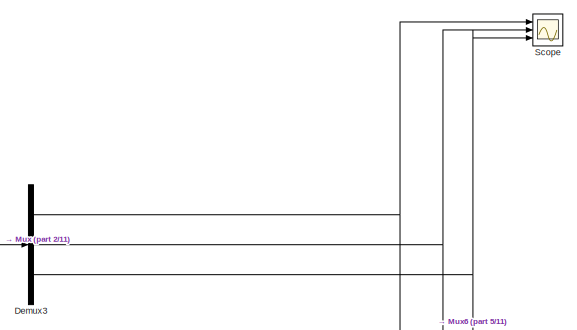
[diagram: root canvas - part 1/11, top right region]
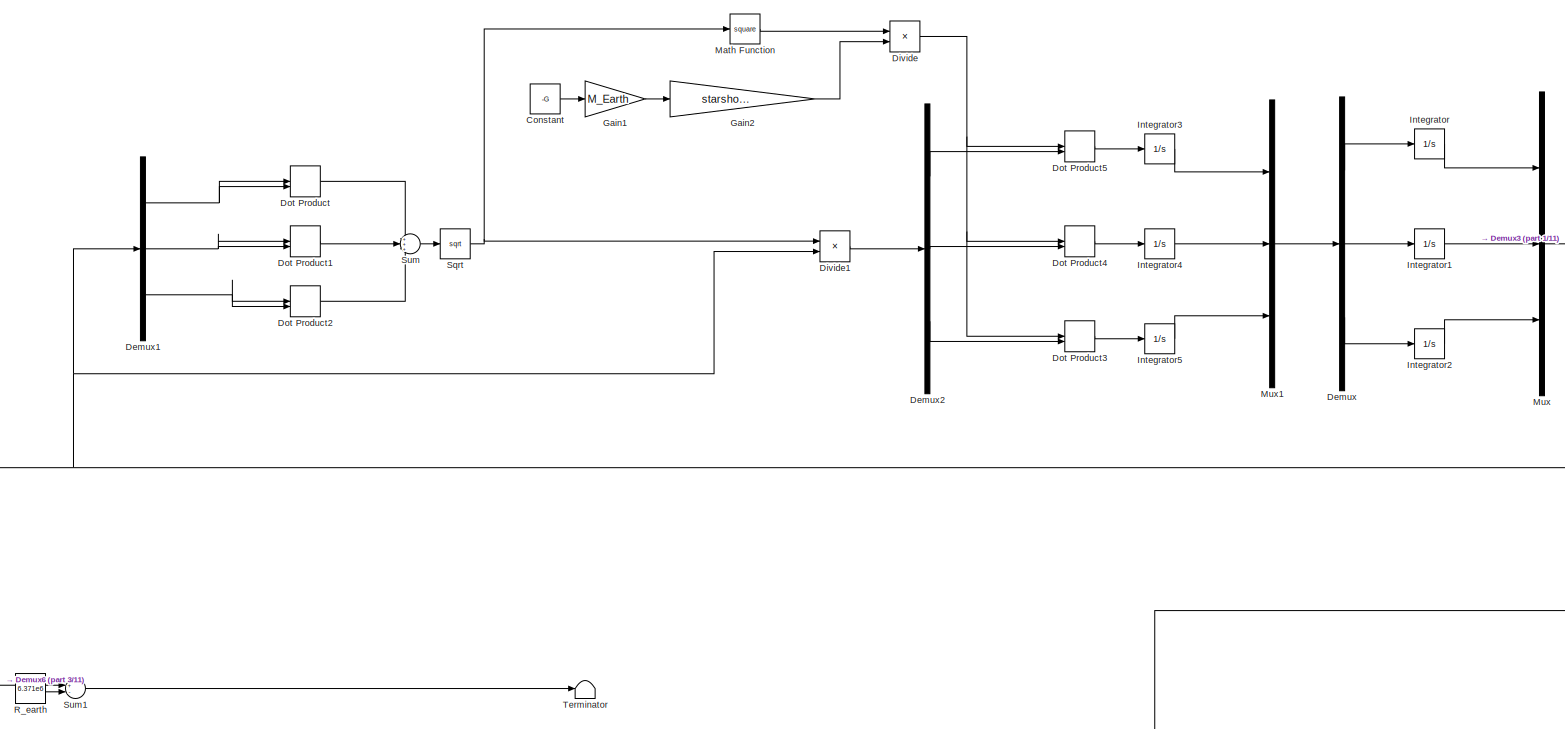
[diagram: root canvas - part 2/11, top right region]
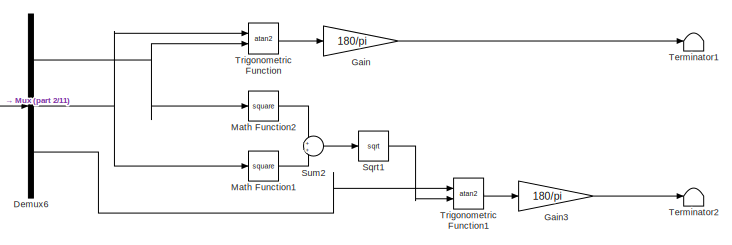
[diagram: root canvas - part 3/11, central region]
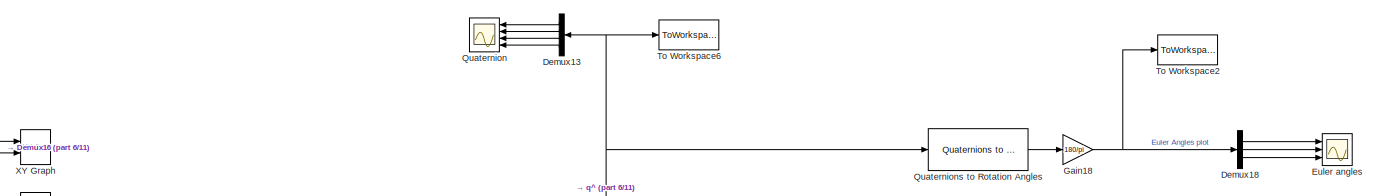
[diagram: root canvas - part 4/11, central region]
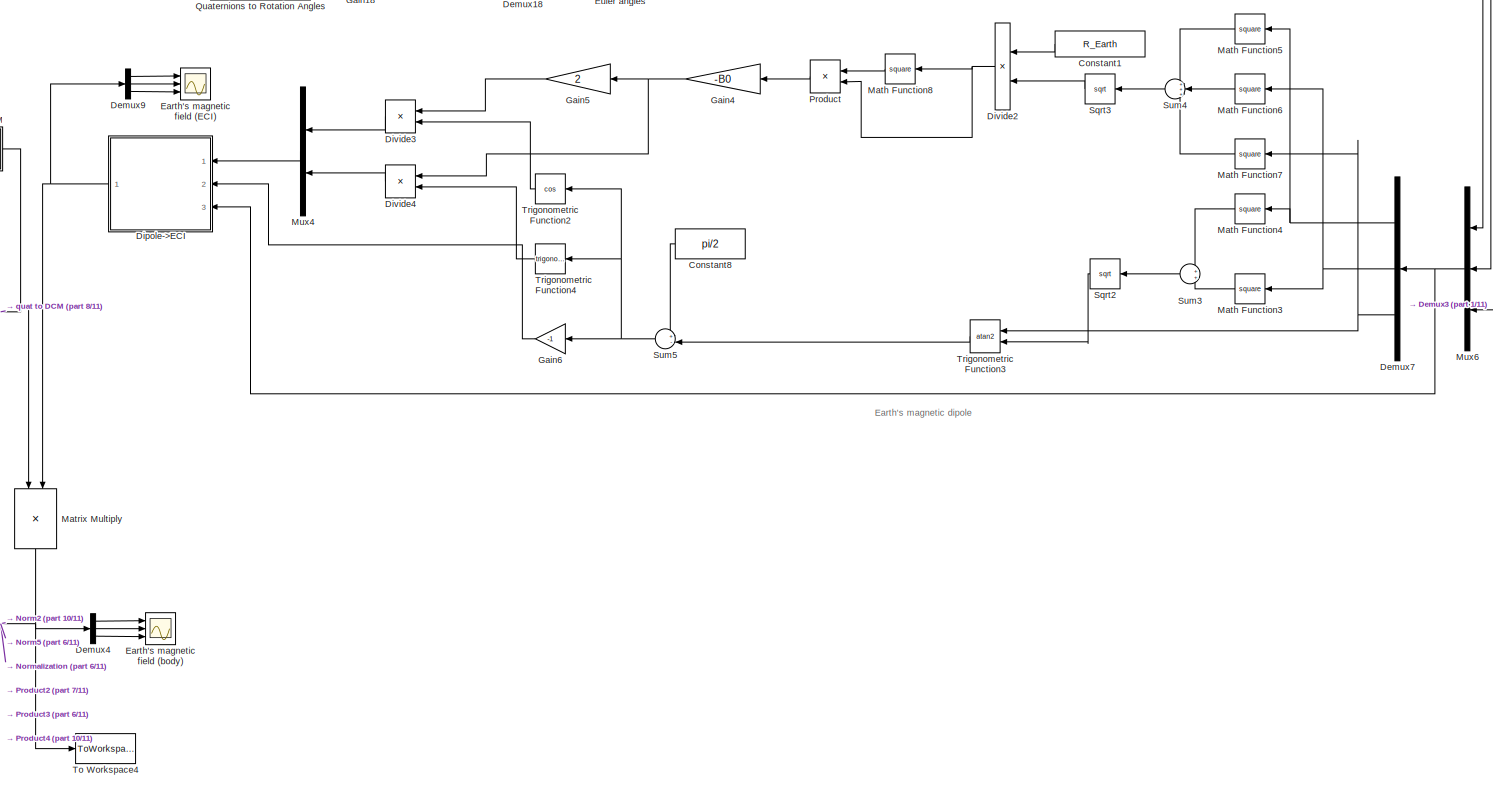
[diagram: root canvas - part 5/11, bottom center region]
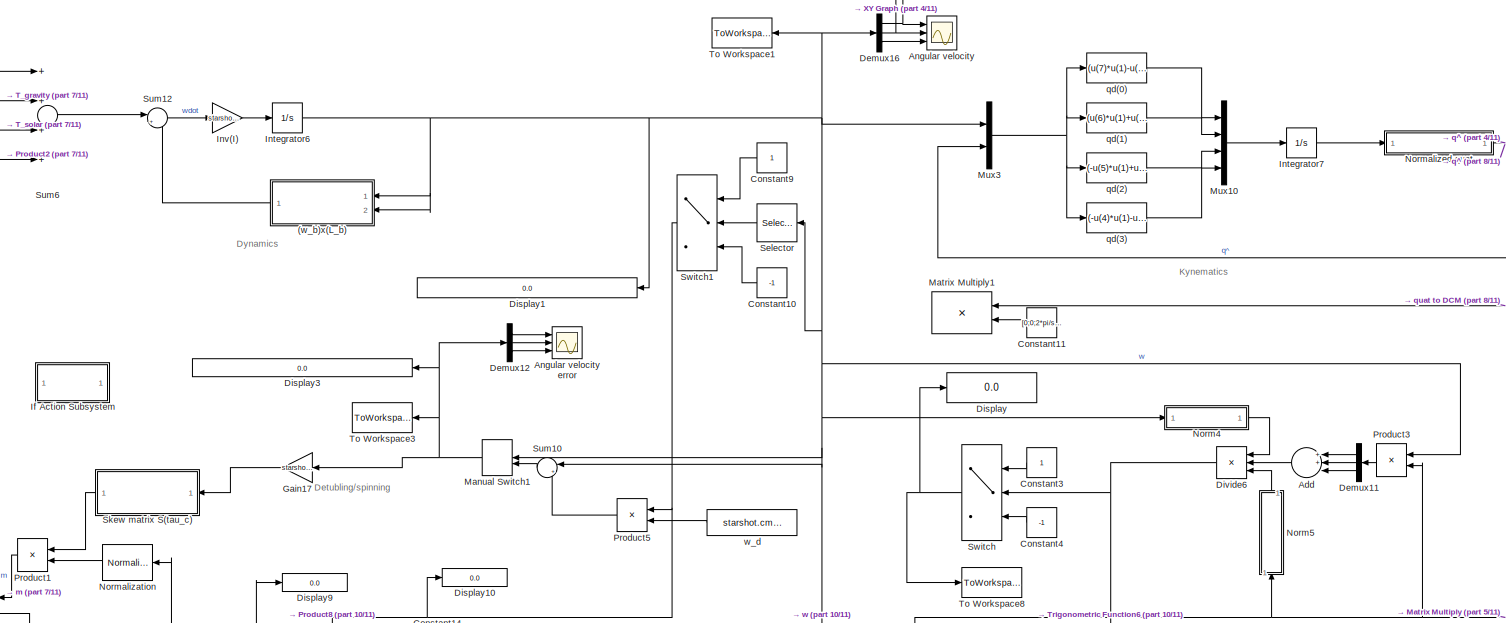
[diagram: root canvas - part 6/11, bottom left region]
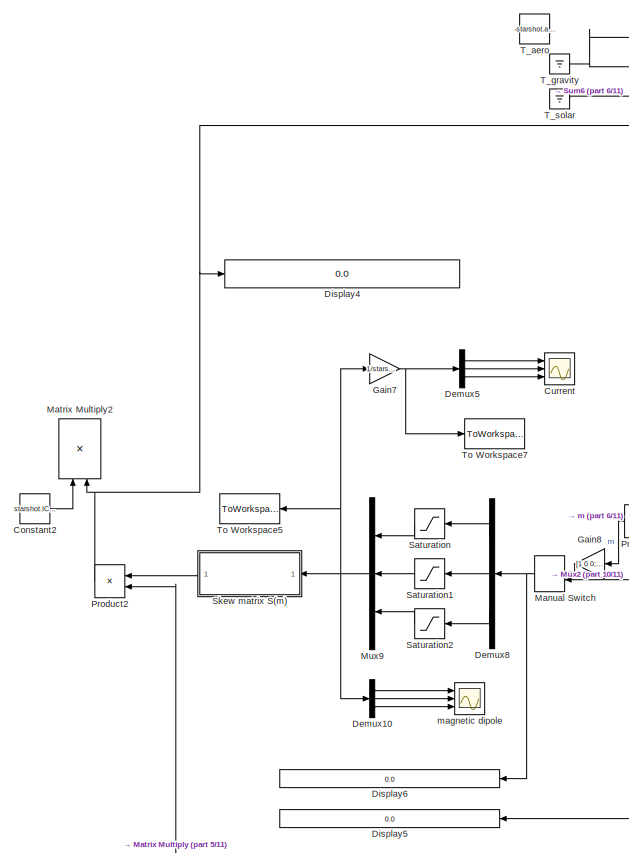
[diagram: root canvas - part 7/11, bottom left region]
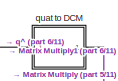
[diagram: root canvas - part 8/11, bottom center region]
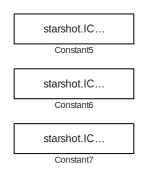
[diagram: root canvas - part 9/11, bottom right region]
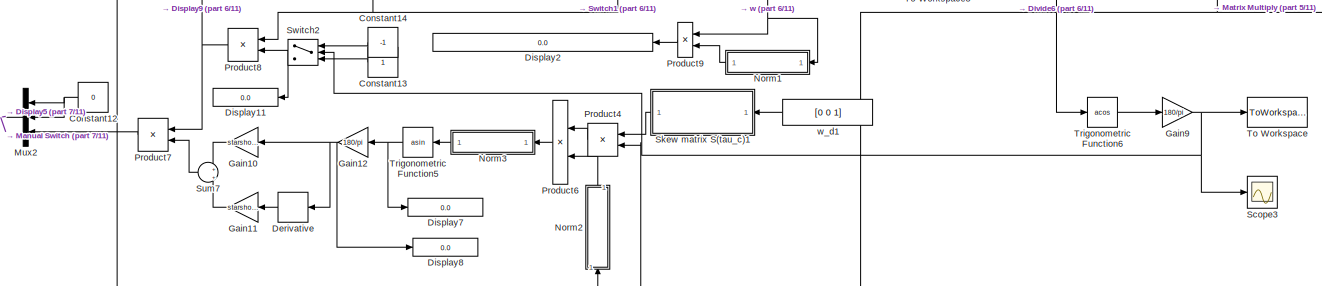
[diagram: root canvas - part 10/11, bottom left region]
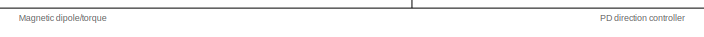
[diagram: root canvas - part 11/11, bottom left region]
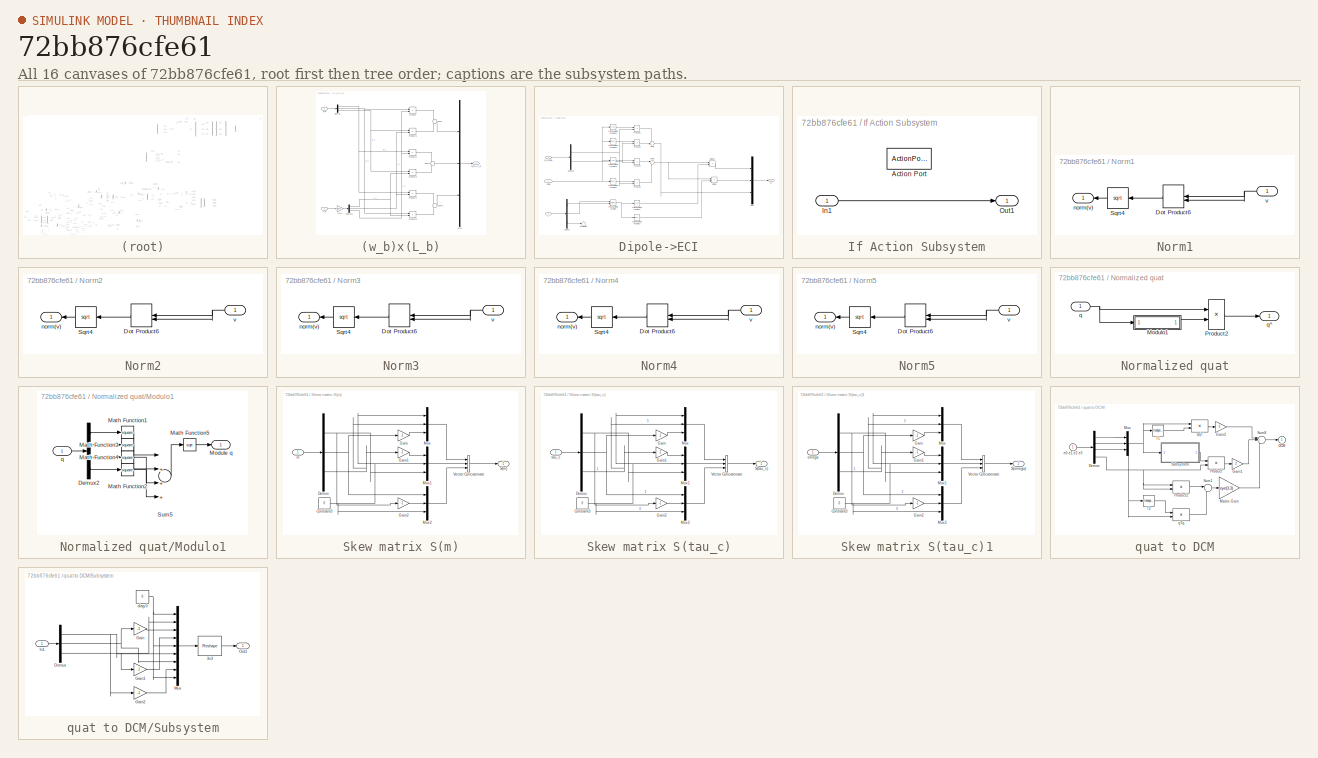
[diagram: thumbnail index - all 16 canvases of the model, root first then tree order]
MODEL slx_72bb876cfe61
KIND model
CONFIG AbsTol = auto
CONFIG EnableMultiTasking = off
CONFIG FixedStep = auto
CONFIG MaxStep = 4.0
CONFIG MinStep = .001
CONFIG RelTol = 1e-6
CONFIG SampleTimeConstraint = Unconstrained
CONFIG Solver = ode45
CONFIG SolverName = ode45
CONFIG StartTime = 0
CONFIG StopTime = 500000
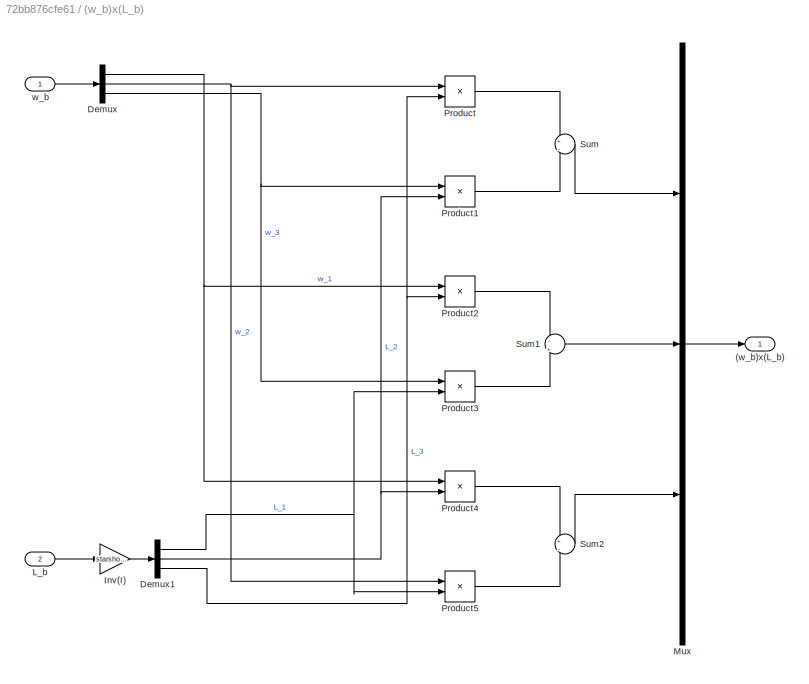
BLOCK [SubSystem] (w_b)x(L_b)
  Ports = [2, 1]
  RequestExecContextInheritance = off
  Variant = off
BLOCK [Outport] (w_b)x(L_b)/(w_b)x(L_b)
  IconDisplay = Port number
BLOCK [Demux] (w_b)x(L_b)/Demux
  DisplayOption = bar
  Outputs = 3
  Ports = [1, 3]
BLOCK [Demux] (w_b)x(L_b)/Demux1
  DisplayOption = bar
  Outputs = 3
  Ports = [1, 3]
BLOCK [Gain] (w_b)x(L_b)/Inv(I)
  Gain = starshot.IC.massproperties.I
  Multiplication = Matrix(K*u)
  OutDataTypeStr = Inherit: Inherit via internal rule
  ParamDataTypeStr = Inherit: Inherit via internal rule
  SaturateOnIntegerOverflow = off
BLOCK [Inport] (w_b)x(L_b)/L_b
  IconDisplay = Port number
  Port = 2
BLOCK [Mux] (w_b)x(L_b)/Mux
  DisplayOption = bar
  Inputs = 3
  Ports = [3, 1]
BLOCK [Product] (w_b)x(L_b)/Product
  InputSameDT = off
  OutDataTypeStr = Inherit: Inherit via internal rule
  Ports = [2, 1]
  RndMeth = Floor
  SaturateOnIntegerOverflow = off
BLOCK [Product] (w_b)x(L_b)/Product1
  InputSameDT = off
  OutDataTypeStr = Inherit: Inherit via internal rule
  Ports = [2, 1]
  RndMeth = Floor
  SaturateOnIntegerOverflow = off
BLOCK [Product] (w_b)x(L_b)/Product2
  InputSameDT = off
  OutDataTypeStr = Inherit: Inherit via internal rule
  Ports = [2, 1]
  RndMeth = Floor
  SaturateOnIntegerOverflow = off
BLOCK [Product] (w_b)x(L_b)/Product3
  InputSameDT = off
  OutDataTypeStr = Inherit: Inherit via internal rule
  Ports = [2, 1]
  RndMeth = Floor
  SaturateOnIntegerOverflow = off
BLOCK [Product] (w_b)x(L_b)/Product4
  InputSameDT = off
  OutDataTypeStr = Inherit: Inherit via internal rule
  Ports = [2, 1]
  RndMeth = Floor
  SaturateOnIntegerOverflow = off
BLOCK [Product] (w_b)x(L_b)/Product5
  InputSameDT = off
  OutDataTypeStr = Inherit: Inherit via internal rule
  Ports = [2, 1]
  RndMeth = Floor
  SaturateOnIntegerOverflow = off
BLOCK [Sum] (w_b)x(L_b)/Sum
  IconShape = round
  InputSameDT = off
  Inputs = +|-
  OutDataTypeStr = Inherit: Inherit via internal rule
  Ports = [2, 1]
  SaturateOnIntegerOverflow = off
BLOCK [Sum] (w_b)x(L_b)/Sum1
  IconShape = round
  InputSameDT = off
  Inputs = -|+
  OutDataTypeStr = Inherit: Inherit via internal rule
  Ports = [2, 1]
  SaturateOnIntegerOverflow = off
BLOCK [Sum] (w_b)x(L_b)/Sum2
  IconShape = round
  InputSameDT = off
  Inputs = +|-
  OutDataTypeStr = Inherit: Inherit via internal rule
  Ports = [2, 1]
  SaturateOnIntegerOverflow = off
BLOCK [Inport] (w_b)x(L_b)/w_b
  IconDisplay = Port number
BLOCK [Sum] Add
  InputSameDT = off
  Inputs = 3
  OutDataTypeStr = Inherit: Inherit via internal rule
  Ports = [3, 1]
  SaturateOnIntegerOverflow = off
BLOCK [Scope] Angular velocity
  NumInputPorts = 3
  Ports = [3]
  ScopeSpecificationString = Simulink.scopes.TimeScopeBlockCfg('CurrentConfiguration', extmgr.ConfigurationSet(extmgr.Configuration('Core','General UI',true),extmgr.Configuration('Core','Source UI',true),extmgr.Configuration('Sources','WiredSimulink',true,'DataLoggingVariableName','ScopeData2'),extmgr.Configuration('Visuals','Time Domain',true,'SerializedDisplays',{struct('MinYLimReal','-2.67192','MaxYLimReal','0.71112','YLab...<+2795ch>
BLOCK [Scope] Angular velocity error
  NumInputPorts = 3
  Ports = [3]
  ScopeSpecificationString = Simulink.scopes.TimeScopeBlockCfg('CurrentConfiguration', extmgr.ConfigurationSet(extmgr.Configuration('Core','General UI',true),extmgr.Configuration('Core','Source UI',true),extmgr.Configuration('Sources','WiredSimulink',true,'DataLoggingVariableName','ScopeData3'),extmgr.Configuration('Visuals','Time Domain',true,'SerializedDisplays',{struct('MinYLimReal','-7.75639','MaxYLimReal','5.47288','YLab...<+2724ch>
BLOCK [Constant] Constant
  Value = -G
BLOCK [Constant] Constant1
  Value = R_Earth
BLOCK [Constant] Constant10
  Value = -1
BLOCK [Constant] Constant11
  Commented = on
  Value = [0;0;2*pi/starshot.controller.T]
BLOCK [Constant] Constant12
  Value = 0
BLOCK [Constant] Constant13
BLOCK [Constant] Constant14
  Value = -1
BLOCK [Constant] Constant2
  Commented = on
  Value = starshot.IC.massproperties.PI
BLOCK [Constant] Constant3
BLOCK [Constant] Constant4
  Value = -1
BLOCK [Constant] Constant5
  Value = starshot.IC.x
BLOCK [Constant] Constant6
  Value = starshot.IC.y
BLOCK [Constant] Constant7
  Value = starshot.IC.z
BLOCK [Constant] Constant8
  Value = pi/2
BLOCK [Constant] Constant9
BLOCK [Scope] Current
  NumInputPorts = 3
  Ports = [3]
  ScopeSpecificationString = Simulink.scopes.TimeScopeBlockCfg('CurrentConfiguration', extmgr.ConfigurationSet(extmgr.Configuration('Core','General UI',true),extmgr.Configuration('Core','Source UI',true),extmgr.Configuration('Sources','WiredSimulink',true,'DataLoggingVariableName','ScopeData1'),extmgr.Configuration('Visuals','Time Domain',true,'SerializedDisplays',{struct('MinYLimReal','-0.03866','MaxYLimReal','0.03898','YLab...<+2741ch>
BLOCK [Demux] Demux
  DisplayOption = bar
  Outputs = 3
  Ports = [1, 3]
BLOCK [Demux] Demux1
  DisplayOption = bar
  Outputs = 3
  Ports = [1, 3]
BLOCK [Demux] Demux10
  DisplayOption = bar
  Outputs = 3
  Ports = [1, 3]
BLOCK [Demux] Demux11
  DisplayOption = bar
  Outputs = 3
  Ports = [1, 3]
BLOCK [Demux] Demux12
  DisplayOption = bar
  Outputs = 3
  Ports = [1, 3]
BLOCK [Demux] Demux13
  DisplayOption = bar
  Ports = [1, 4]
BLOCK [Demux] Demux16
  DisplayOption = bar
  Outputs = 3
  Ports = [1, 3]
BLOCK [Demux] Demux18
  DisplayOption = bar
  Outputs = 3
  Ports = [1, 3]
BLOCK [Demux] Demux2
  DisplayOption = bar
  Outputs = 3
  Ports = [1, 3]
BLOCK [Demux] Demux3
  DisplayOption = bar
  Outputs = 3
  Ports = [1, 3]
BLOCK [Demux] Demux4
  DisplayOption = bar
  Outputs = 3
  Ports = [1, 3]
BLOCK [Demux] Demux5
  DisplayOption = bar
  Outputs = 3
  Ports = [1, 3]
BLOCK [Demux] Demux6
  Commented = on
  DisplayOption = bar
  Outputs = 3
  Ports = [1, 3]
BLOCK [Demux] Demux7
  DisplayOption = bar
  Outputs = 3
  Ports = [1, 3]
BLOCK [Demux] Demux8
  DisplayOption = bar
  Outputs = 3
  Ports = [1, 3]
BLOCK [Demux] Demux9
  DisplayOption = bar
  Outputs = 3
  Ports = [1, 3]
BLOCK [Derivative] Derivative
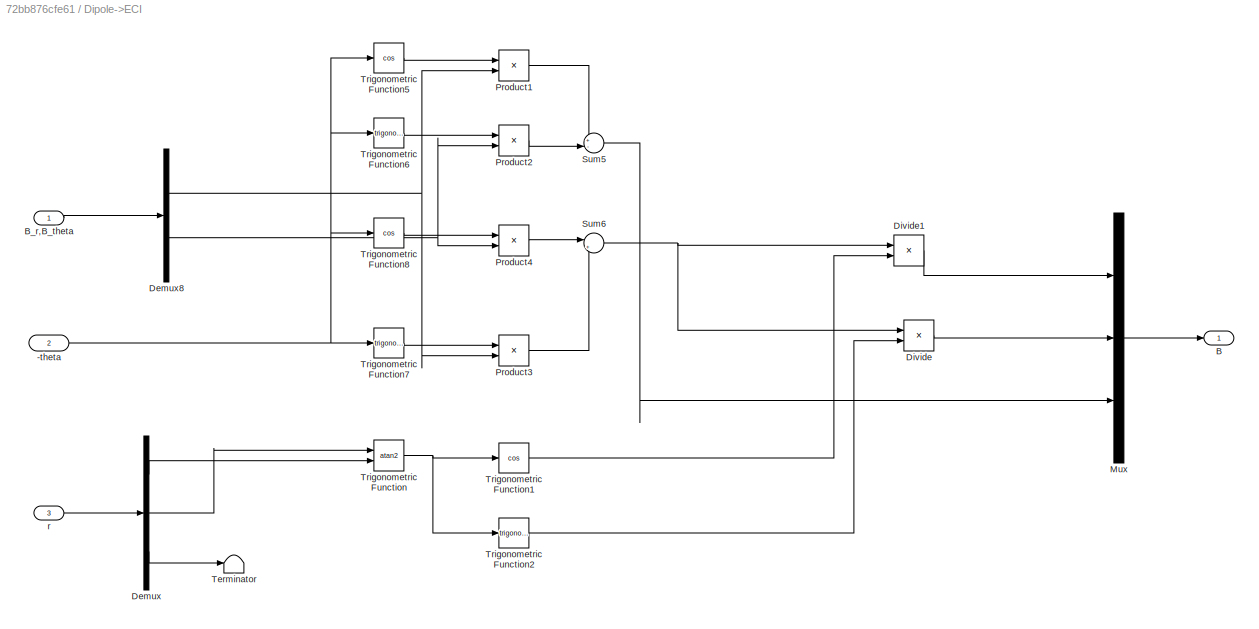
BLOCK [SubSystem] Dipole->ECI
  Ports = [3, 1]
  RequestExecContextInheritance = off
  Variant = off
BLOCK [Inport] Dipole->ECI/-theta
  IconDisplay = Port number
  Port = 2
BLOCK [Outport] Dipole->ECI/B
  IconDisplay = Port number
BLOCK [Inport] Dipole->ECI/B_r,B_theta
  IconDisplay = Port number
BLOCK [Demux] Dipole->ECI/Demux
  DisplayOption = bar
  Outputs = 3
  Ports = [1, 3]
BLOCK [Demux] Dipole->ECI/Demux8
  DisplayOption = bar
  Outputs = 2
  Ports = [1, 2]
BLOCK [Product] Dipole->ECI/Divide
  InputSameDT = off
  Inputs = **
  OutDataTypeStr = Inherit: Inherit via internal rule
  Ports = [2, 1]
  RndMeth = Floor
  SaturateOnIntegerOverflow = off
BLOCK [Product] Dipole->ECI/Divide1
  InputSameDT = off
  Inputs = **
  OutDataTypeStr = Inherit: Inherit via internal rule
  Ports = [2, 1]
  RndMeth = Floor
  SaturateOnIntegerOverflow = off
BLOCK [Mux] Dipole->ECI/Mux
  DisplayOption = bar
  Inputs = 3
  Ports = [3, 1]
BLOCK [Product] Dipole->ECI/Product1
  InputSameDT = off
  OutDataTypeStr = Inherit: Inherit via internal rule
  Ports = [2, 1]
  RndMeth = Floor
  SaturateOnIntegerOverflow = off
BLOCK [Product] Dipole->ECI/Product2
  InputSameDT = off
  OutDataTypeStr = Inherit: Inherit via internal rule
  Ports = [2, 1]
  RndMeth = Floor
  SaturateOnIntegerOverflow = off
BLOCK [Product] Dipole->ECI/Product3
  InputSameDT = off
  OutDataTypeStr = Inherit: Inherit via internal rule
  Ports = [2, 1]
  RndMeth = Floor
  SaturateOnIntegerOverflow = off
BLOCK [Product] Dipole->ECI/Product4
  InputSameDT = off
  OutDataTypeStr = Inherit: Inherit via internal rule
  Ports = [2, 1]
  RndMeth = Floor
  SaturateOnIntegerOverflow = off
BLOCK [Sum] Dipole->ECI/Sum5
  IconShape = round
  InputSameDT = off
  Inputs = +-|
  OutDataTypeStr = Inherit: Inherit via internal rule
  Ports = [2, 1]
  SaturateOnIntegerOverflow = off
BLOCK [Sum] Dipole->ECI/Sum6
  IconShape = round
  InputSameDT = off
  Inputs = |++
  OutDataTypeStr = Inherit: Inherit via internal rule
  Ports = [2, 1]
  SaturateOnIntegerOverflow = off
BLOCK [Terminator] Dipole->ECI/Terminator
BLOCK [Trigonometry] Dipole->ECI/Trigonometric Function
  Operator = atan2
  Ports = [2, 1]
BLOCK [Trigonometry] Dipole->ECI/Trigonometric Function1
  Operator = cos
  Ports = [1, 1]
BLOCK [Trigonometry] Dipole->ECI/Trigonometric Function2
  Ports = [1, 1]
BLOCK [Trigonometry] Dipole->ECI/Trigonometric Function5
  Operator = cos
  Ports = [1, 1]
BLOCK [Trigonometry] Dipole->ECI/Trigonometric Function6
  Ports = [1, 1]
BLOCK [Trigonometry] Dipole->ECI/Trigonometric Function7
  Ports = [1, 1]
BLOCK [Trigonometry] Dipole->ECI/Trigonometric Function8
  Operator = cos
  Ports = [1, 1]
BLOCK [Inport] Dipole->ECI/r
  IconDisplay = Port number
  Port = 3
BLOCK [Display] Display
  Decimation = 1
  Ports = [1]
BLOCK [Display] Display1
  Decimation = 1
  Ports = [1]
BLOCK [Display] Display10
  Decimation = 1
  Ports = [1]
BLOCK [Display] Display11
  Decimation = 1
  Ports = [1]
BLOCK [Display] Display2
  Decimation = 1
  Ports = [1]
BLOCK [Display] Display3
  Decimation = 1
  Ports = [1]
BLOCK [Display] Display4
  Decimation = 1
  Ports = [1]
BLOCK [Display] Display5
  Decimation = 1
  Ports = [1]
BLOCK [Display] Display6
  Decimation = 1
  Ports = [1]
BLOCK [Display] Display7
  Decimation = 1
  Ports = [1]
BLOCK [Display] Display8
  Decimation = 1
  Ports = [1]
BLOCK [Display] Display9
  Decimation = 1
  Ports = [1]
BLOCK [Product] Divide
  InputSameDT = off
  Inputs = /*
  OutDataTypeStr = Inherit: Inherit via internal rule
  Ports = [2, 1]
  RndMeth = Floor
  SaturateOnIntegerOverflow = off
BLOCK [Product] Divide1
  InputSameDT = off
  Inputs = /*
  OutDataTypeStr = Inherit: Inherit via internal rule
  Ports = [2, 1]
  RndMeth = Floor
  SaturateOnIntegerOverflow = off
BLOCK [Product] Divide2
  InputSameDT = off
  Inputs = */
  OutDataTypeStr = Inherit: Inherit via internal rule
  Ports = [2, 1]
  RndMeth = Floor
  SaturateOnIntegerOverflow = off
BLOCK [Product] Divide3
  InputSameDT = off
  Inputs = **
  OutDataTypeStr = Inherit: Inherit via internal rule
  Ports = [2, 1]
  RndMeth = Floor
  SaturateOnIntegerOverflow = off
BLOCK [Product] Divide4
  InputSameDT = off
  Inputs = **
  OutDataTypeStr = Inherit: Inherit via internal rule
  Ports = [2, 1]
  RndMeth = Floor
  SaturateOnIntegerOverflow = off
BLOCK [Product] Divide6
  InputSameDT = off
  Inputs = /*/
  OutDataTypeStr = Inherit: Inherit via internal rule
  Ports = [3, 1]
  RndMeth = Floor
  SaturateOnIntegerOverflow = off
BLOCK [DotProduct] Dot Product
  OutDataTypeStr = Inherit: Inherit via internal rule
BLOCK [DotProduct] Dot Product1
  OutDataTypeStr = Inherit: Inherit via internal rule
BLOCK [DotProduct] Dot Product2
  OutDataTypeStr = Inherit: Inherit via internal rule
BLOCK [DotProduct] Dot Product3
  OutDataTypeStr = Inherit: Inherit via internal rule
BLOCK [DotProduct] Dot Product4
  OutDataTypeStr = Inherit: Inherit via internal rule
BLOCK [DotProduct] Dot Product5
  OutDataTypeStr = Inherit: Inherit via internal rule
BLOCK [Scope] Earth's magnetic field (ECI)
  NumInputPorts = 3
  Ports = [3]
  ScopeSpecificationString = Simulink.scopes.TimeScopeBlockCfg('CurrentConfiguration', extmgr.ConfigurationSet(extmgr.Configuration('Core','General UI',true),extmgr.Configuration('Core','Source UI',true),extmgr.Configuration('Sources','WiredSimulink',true,'DataLoggingVariableName','ScopeData2'),extmgr.Configuration('Visuals','Time Domain',true,'SerializedDisplays',{struct('MinYLimReal','-0.0000004','MaxYLimReal','0.0000033','...<+2790ch>
BLOCK [Scope] Earth's magnetic field (body)
  NumInputPorts = 3
  Ports = [3]
  ScopeSpecificationString = Simulink.scopes.TimeScopeBlockCfg('CurrentConfiguration', extmgr.ConfigurationSet(extmgr.Configuration('Core','General UI',true),extmgr.Configuration('Core','Source UI',true),extmgr.Configuration('Sources','WiredSimulink',true,'DataLoggingVariableName','ScopeData2'),extmgr.Configuration('Visuals','Time Domain',true,'SerializedDisplays',{struct('MinYLimReal','-0.000023','MaxYLimReal','0.000019','YL...<+2787ch>
BLOCK [Scope] Euler angles
  NumInputPorts = 3
  Ports = [3]
  ScopeSpecificationString = Simulink.scopes.TimeScopeBlockCfg('CurrentConfiguration', extmgr.ConfigurationSet(extmgr.Configuration('Core','General UI',true),extmgr.Configuration('Core','Source UI',true),extmgr.Configuration('Sources','WiredSimulink',true,'DataLoggingVariableName','ScopeData5'),extmgr.Configuration('Visuals','Time Domain',true,'SerializedDisplays',{struct('MinYLimReal','-224.97937','MaxYLimReal','224.98449','...<+2815ch>
BLOCK [Gain] Gain
  Commented = on
  Gain = 180/pi
  OutDataTypeStr = Inherit: Inherit via internal rule
  ParamDataTypeStr = Inherit: Inherit via internal rule
  SaturateOnIntegerOverflow = off
BLOCK [Gain] Gain1
  Gain = M_Earth
  OutDataTypeStr = Inherit: Inherit via internal rule
  ParamDataTypeStr = Inherit: Inherit via internal rule
  SaturateOnIntegerOverflow = off
BLOCK [Gain] Gain10
  Gain = starshot.controller.Kp
  OutDataTypeStr = Inherit: Inherit via internal rule
  ParamDataTypeStr = Inherit: Inherit via internal rule
  SaturateOnIntegerOverflow = off
BLOCK [Gain] Gain11
  Gain = starshot.controller.Kd
  OutDataTypeStr = Inherit: Inherit via internal rule
  ParamDataTypeStr = Inherit: Inherit via internal rule
  SaturateOnIntegerOverflow = off
BLOCK [Gain] Gain12
  Gain = 180/pi
  OutDataTypeStr = Inherit: Inherit via internal rule
  ParamDataTypeStr = Inherit: Inherit via internal rule
  SaturateOnIntegerOverflow = off
BLOCK [Gain] Gain17
  Gain = starshot.controller.Kbdot/50
  Multiplication = Matrix(K*u)
  OutDataTypeStr = Inherit: Inherit via internal rule
  ParamDataTypeStr = Inherit: Inherit via internal rule
  SaturateOnIntegerOverflow = off
BLOCK [Gain] Gain18
  Gain = 180/pi
  OutDataTypeStr = Inherit: Inherit via internal rule
  ParamDataTypeStr = Inherit: Inherit via internal rule
  SaturateOnIntegerOverflow = off
BLOCK [Gain] Gain2
  Gain = starshot.IC.massproperties.m
  OutDataTypeStr = Inherit: Inherit via internal rule
  ParamDataTypeStr = Inherit: Inherit via internal rule
  SaturateOnIntegerOverflow = off
BLOCK [Gain] Gain3
  Commented = on
  Gain = 180/pi
  OutDataTypeStr = Inherit: Inherit via internal rule
  ParamDataTypeStr = Inherit: Inherit via internal rule
  SaturateOnIntegerOverflow = off
BLOCK [Gain] Gain4
  Gain = -B0
  OutDataTypeStr = Inherit: Inherit via internal rule
  ParamDataTypeStr = Inherit: Inherit via internal rule
  SaturateOnIntegerOverflow = off
BLOCK [Gain] Gain5
  Gain = 2
  OutDataTypeStr = Inherit: Inherit via internal rule
  ParamDataTypeStr = Inherit: Inherit via internal rule
  SaturateOnIntegerOverflow = off
BLOCK [Gain] Gain6
  Gain = -1
  OutDataTypeStr = Inherit: Inherit via internal rule
  ParamDataTypeStr = Inherit: Inherit via internal rule
  SaturateOnIntegerOverflow = off
BLOCK [Gain] Gain7
  Gain = 1/starshot.magnetorq.k/starshot.magnetorq.n/starshot.magnetorq.A
  OutDataTypeStr = Inherit: Inherit via internal rule
  ParamDataTypeStr = Inherit: Inherit via internal rule
  SaturateOnIntegerOverflow = off
BLOCK [Gain] Gain8
  Gain = [1 0 0;0 1 0;0 0 1]
  Multiplication = Matrix(K*u) (u vector)
  OutDataTypeStr = Inherit: Inherit via internal rule
  ParamDataTypeStr = Inherit: Inherit via internal rule
  SaturateOnIntegerOverflow = off
BLOCK [Gain] Gain9
  Gain = 180/pi
  OutDataTypeStr = Inherit: Inherit via internal rule
  ParamDataTypeStr = Inherit: Inherit via internal rule
  SaturateOnIntegerOverflow = off
BLOCK [SubSystem] If Action Subsystem
  Commented = on
  Ports = [1, 1, 0, 0, 0, 0, 0, 1]
  RequestExecContextInheritance = off
  TreatAsAtomicUnit = on
  Variant = off
BLOCK [ActionPort] If Action Subsystem/Action Port
BLOCK [Inport] If Action Subsystem/In1
  IconDisplay = Port number
BLOCK [Outport] If Action Subsystem/Out1
  IconDisplay = Port number
BLOCK [Integrator] Integrator
  InitialCondition = starshot.IC.x
  Ports = [1, 1]
BLOCK [Integrator] Integrator1
  InitialCondition = starshot.IC.y
  Ports = [1, 1]
BLOCK [Integrator] Integrator2
  InitialCondition = starshot.IC.z
  Ports = [1, 1]
BLOCK [Integrator] Integrator3
  InitialCondition = starshot.IC.xdot
  Ports = [1, 1]
BLOCK [Integrator] Integrator4
  InitialCondition = starshot.IC.ydot
  Ports = [1, 1]
BLOCK [Integrator] Integrator5
  InitialCondition = starshot.IC.zdot
  Ports = [1, 1]
BLOCK [Integrator] Integrator6
  InitialCondition = starshot.IC.w
  Ports = [1, 1]
BLOCK [Integrator] Integrator7
  InitialCondition = q0
  Ports = [1, 1]
BLOCK [Gain] Inv(I)
  Gain = starshot.IC.massproperties.Iinv
  Multiplication = Matrix(K*u)
  OutDataTypeStr = Inherit: Inherit via internal rule
  ParamDataTypeStr = Inherit: Inherit via internal rule
  SaturateOnIntegerOverflow = off
BLOCK [ManualSwitch] Manual Switch
BLOCK [ManualSwitch] Manual Switch1
  CurrentSetting = 0
BLOCK [Math] Math Function
  Operator = square
  Ports = [1, 1]
BLOCK [Math] Math Function1
  Commented = on
  Operator = square
  Ports = [1, 1]
BLOCK [Math] Math Function2
  Commented = on
  Operator = square
  Ports = [1, 1]
BLOCK [Math] Math Function3
  Operator = square
  Ports = [1, 1]
BLOCK [Math] Math Function4
  Operator = square
  Ports = [1, 1]
BLOCK [Math] Math Function5
  Operator = square
  Ports = [1, 1]
BLOCK [Math] Math Function6
  Operator = square
  Ports = [1, 1]
BLOCK [Math] Math Function7
  Operator = square
  Ports = [1, 1]
BLOCK [Math] Math Function8
  Operator = square
  Ports = [1, 1]
BLOCK [Product] Matrix Multiply
  InputSameDT = off
  Multiplication = Matrix(*)
  OutDataTypeStr = Inherit: Inherit via internal rule
  Ports = [2, 1]
  RndMeth = Floor
  SaturateOnIntegerOverflow = off
BLOCK [Product] Matrix Multiply1
  Commented = on
  InputSameDT = off
  Multiplication = Matrix(*)
  OutDataTypeStr = Inherit: Inherit via internal rule
  Ports = [2, 1]
  RndMeth = Floor
  SaturateOnIntegerOverflow = off
BLOCK [Product] Matrix Multiply2
  Commented = on
  InputSameDT = off
  Multiplication = Matrix(*)
  OutDataTypeStr = Inherit: Inherit via internal rule
  Ports = [2, 1]
  RndMeth = Floor
  SaturateOnIntegerOverflow = off
BLOCK [Mux] Mux
  DisplayOption = bar
  Inputs = 3
  Ports = [3, 1]
BLOCK [Mux] Mux1
  DisplayOption = bar
  Inputs = 3
  Ports = [3, 1]
BLOCK [Mux] Mux10
  DisplayOption = bar
  Ports = [4, 1]
BLOCK [Mux] Mux2
  DisplayOption = bar
  Inputs = 3
  Ports = [3, 1]
BLOCK [Mux] Mux3
  DisplayOption = bar
  Inputs = 2
  Ports = [2, 1]
BLOCK [Mux] Mux4
  DisplayOption = bar
  Inputs = 2
  Ports = [2, 1]
BLOCK [Mux] Mux6
  DisplayOption = bar
  Inputs = 3
  Ports = [3, 1]
BLOCK [Mux] Mux9
  DisplayOption = bar
  Inputs = 3
  Ports = [3, 1]
BLOCK [SubSystem] Norm1
  Ports = [1, 1]
  RequestExecContextInheritance = off
  Variant = off
BLOCK [DotProduct] Norm1/Dot Product6
  OutDataTypeStr = Inherit: Inherit via internal rule
BLOCK [Sqrt] Norm1/Sqrt4
BLOCK [Outport] Norm1/norm(v)
  IconDisplay = Port number
BLOCK [Inport] Norm1/v
  IconDisplay = Port number
BLOCK [SubSystem] Norm2
  Ports = [1, 1]
  RequestExecContextInheritance = off
  Variant = off
BLOCK [DotProduct] Norm2/Dot Product6
  OutDataTypeStr = Inherit: Inherit via internal rule
BLOCK [Sqrt] Norm2/Sqrt4
BLOCK [Outport] Norm2/norm(v)
  IconDisplay = Port number
BLOCK [Inport] Norm2/v
  IconDisplay = Port number
BLOCK [SubSystem] Norm3
  Ports = [1, 1]
  RequestExecContextInheritance = off
  Variant = off
BLOCK [DotProduct] Norm3/Dot Product6
  OutDataTypeStr = Inherit: Inherit via internal rule
BLOCK [Sqrt] Norm3/Sqrt4
BLOCK [Outport] Norm3/norm(v)
  IconDisplay = Port number
BLOCK [Inport] Norm3/v
  IconDisplay = Port number
BLOCK [SubSystem] Norm4
  Ports = [1, 1]
  RequestExecContextInheritance = off
  Variant = off
BLOCK [DotProduct] Norm4/Dot Product6
  OutDataTypeStr = Inherit: Inherit via internal rule
BLOCK [Sqrt] Norm4/Sqrt4
BLOCK [Outport] Norm4/norm(v)
  IconDisplay = Port number
BLOCK [Inport] Norm4/v
  IconDisplay = Port number
BLOCK [SubSystem] Norm5
  Ports = [1, 1]
  RequestExecContextInheritance = off
  Variant = off
BLOCK [DotProduct] Norm5/Dot Product6
  OutDataTypeStr = Inherit: Inherit via internal rule
BLOCK [Sqrt] Norm5/Sqrt4
BLOCK [Outport] Norm5/norm(v)
  IconDisplay = Port number
BLOCK [Inport] Norm5/v
  IconDisplay = Port number
BLOCK [Reference] Normalization  REF=dspmathops/Normalization
  Ports = [1, 1]
  SourceBlock = dspmathops/Normalization
  SourceProductBaseCode = DS
  SourceProductName = DSP System Toolbox
  SourceType = Normalization
BLOCK [SubSystem] Normalized quat
  Ports = [1, 1]
  RequestExecContextInheritance = off
  Variant = off
BLOCK [SubSystem] Normalized quat/Modulo1
  Ports = [1, 1]
  RequestExecContextInheritance = off
  Variant = off
BLOCK [Demux] Normalized quat/Modulo1/Demux2
  Ports = [1, 4]
BLOCK [Math] Normalized quat/Modulo1/Math Function1
  Operator = square
  Ports = [1, 1]
BLOCK [Math] Normalized quat/Modulo1/Math Function2
  Operator = square
  Ports = [1, 1]
BLOCK [Math] Normalized quat/Modulo1/Math Function3
  Operator = square
  Ports = [1, 1]
BLOCK [Math] Normalized quat/Modulo1/Math Function4
  Operator = square
  Ports = [1, 1]
BLOCK [Math] Normalized quat/Modulo1/Math Function5
  Operator = sqrt
  Ports = [1, 1]
BLOCK [Outport] Normalized quat/Modulo1/Module q
  IconDisplay = Port number
BLOCK [Sum] Normalized quat/Modulo1/Sum5
  InputSameDT = off
  Inputs = |++++
  OutDataTypeStr = Inherit: Inherit via internal rule
  Ports = [4, 1]
BLOCK [Inport] Normalized quat/Modulo1/q
  IconDisplay = Port number
BLOCK [Product] Normalized quat/Product2
  InputSameDT = off
  Inputs = */
  Ports = [2, 1]
  RndMeth = Floor
BLOCK [Inport] Normalized quat/q
  IconDisplay = Port number
BLOCK [Outport] Normalized quat/q^
  IconDisplay = Port number
BLOCK [Product] Product
  InputSameDT = off
  OutDataTypeStr = Inherit: Inherit via internal rule
  Ports = [2, 1]
  RndMeth = Floor
  SaturateOnIntegerOverflow = off
BLOCK [Product] Product1
  InputSameDT = off
  Multiplication = Matrix(*)
  OutDataTypeStr = Inherit: Inherit via internal rule
  Ports = [2, 1]
  RndMeth = Floor
  SaturateOnIntegerOverflow = off
BLOCK [Product] Product2
  InputSameDT = off
  Multiplication = Matrix(*)
  OutDataTypeStr = Inherit: Inherit via internal rule
  Ports = [2, 1]
  RndMeth = Floor
  SaturateOnIntegerOverflow = off
BLOCK [Product] Product3
  InputSameDT = off
  OutDataTypeStr = Inherit: Inherit via internal rule
  Ports = [2, 1]
  RndMeth = Floor
  SaturateOnIntegerOverflow = off
BLOCK [Product] Product4
  InputSameDT = off
  Multiplication = Matrix(*)
  OutDataTypeStr = Inherit: Inherit via internal rule
  Ports = [2, 1]
  RndMeth = Floor
  SaturateOnIntegerOverflow = off
BLOCK [Product] Product5
  InputSameDT = off
  Inputs = **
  OutDataTypeStr = Inherit: Inherit via internal rule
  Ports = [2, 1]
  RndMeth = Floor
  SaturateOnIntegerOverflow = off
BLOCK [Product] Product6
  InputSameDT = off
  Inputs = */
  OutDataTypeStr = Inherit: Inherit via internal rule
  Ports = [2, 1]
  RndMeth = Floor
  SaturateOnIntegerOverflow = off
BLOCK [Product] Product7
  InputSameDT = off
  Inputs = **
  OutDataTypeStr = Inherit: Inherit via internal rule
  Ports = [2, 1]
  RndMeth = Floor
  SaturateOnIntegerOverflow = off
BLOCK [Product] Product8
  InputSameDT = off
  Inputs = **
  OutDataTypeStr = Inherit: Inherit via internal rule
  Ports = [2, 1]
  RndMeth = Floor
  SaturateOnIntegerOverflow = off
BLOCK [Product] Product9
  InputSameDT = off
  Inputs = */
  OutDataTypeStr = Inherit: Inherit via internal rule
  Ports = [2, 1]
  RndMeth = Floor
  SaturateOnIntegerOverflow = off
BLOCK [Scope] Quaternion
  NumInputPorts = 4
  Ports = [4]
  ScopeSpecificationString = Simulink.scopes.TimeScopeBlockCfg('CurrentConfiguration', extmgr.ConfigurationSet(extmgr.Configuration('Core','General UI',true),extmgr.Configuration('Core','Source UI',true),extmgr.Configuration('Sources','WiredSimulink',true,'DataLoggingVariableName','ScopeData1'),extmgr.Configuration('Visuals','Time Domain',true,'SerializedDisplays',{struct('MinYLimReal','-1.22386','MaxYLimReal','1.22384','YLab...<+3460ch>
BLOCK [Reference] Quaternions to Rotation Angles  REF=sharedtransform/Quaternions to Rotation Angles
  AttributesFormatString = Rotation Order: %<rotationOrder>
  Ports = [1, 1]
  SourceBlock = sharedtransform/Quaternions to Rotation Angles
  SourceType = Quat2Ang
BLOCK [Constant] R_earth
  Commented = on
  Value = 6.371e6
BLOCK [Saturate] Saturation
  InputPortMap = u0
  LowerLimit = -starshot.magnetorq.m_max_x
  Ports = [1, 1]
  UpperLimit = starshot.magnetorq.m_max_x
BLOCK [Saturate] Saturation1
  InputPortMap = u0
  LowerLimit = -starshot.magnetorq.m_max_y
  Ports = [1, 1]
  UpperLimit = starshot.magnetorq.m_max_y
BLOCK [Saturate] Saturation2
  InputPortMap = u0
  LowerLimit = -starshot.magnetorq.m_max_x
  Ports = [1, 1]
  UpperLimit = starshot.magnetorq.m_max_z
BLOCK [Scope] Scope
  NumInputPorts = 3
  Ports = [3]
  ScopeSpecificationString = Simulink.scopes.TimeScopeBlockCfg('CurrentConfiguration', extmgr.ConfigurationSet(extmgr.Configuration('Core','General UI',true),extmgr.Configuration('Core','Source UI',true),extmgr.Configuration('Sources','WiredSimulink',true,'DataLoggingVariableName','ScopeData1'),extmgr.Configuration('Visuals','Time Domain',true,'SerializedDisplays',{struct('MinYLimReal','-9175892.21473','MaxYLimReal','8797321....<+2811ch>
BLOCK [Scope] Scope3
  NumInputPorts = 1
  Ports = [1]
  ScopeSpecificationString = Simulink.scopes.TimeScopeBlockCfg('CurrentConfiguration', extmgr.ConfigurationSet(extmgr.Configuration('Core','General UI',true),extmgr.Configuration('Core','Source UI',true),extmgr.Configuration('Sources','WiredSimulink',true,'DataLoggingVariableName','ScopeData1'),extmgr.Configuration('Visuals','Time Domain',true,'SerializedDisplays',{struct('MinYLimReal','-10.93136','MaxYLimReal','102.9907','YL...<+1443ch>
BLOCK [Selector] Selector
  IndexOptions = Index vector (dialog)
  Indices = [3]
  InputPortWidth = 3
  OutputSizes = 1
  Ports = [1, 1]
BLOCK [SubSystem] Skew matrix S(m)
  Ports = [1, 1]
  RequestExecContextInheritance = off
  Variant = off
BLOCK [Constant] Skew matrix S(m)/Constant3
  Value = 0
BLOCK [Demux] Skew matrix S(m)/Demux
  DisplayOption = bar
  Outputs = 3
  Ports = [1, 3]
BLOCK [Gain] Skew matrix S(m)/Gain
  Gain = -1
  OutDataTypeStr = Inherit: Inherit via internal rule
  ParamDataTypeStr = Inherit: Inherit via internal rule
  SaturateOnIntegerOverflow = off
BLOCK [Gain] Skew matrix S(m)/Gain1
  Gain = -1
  OutDataTypeStr = Inherit: Inherit via internal rule
  ParamDataTypeStr = Inherit: Inherit via internal rule
  SaturateOnIntegerOverflow = off
BLOCK [Gain] Skew matrix S(m)/Gain2
  Gain = -1
  OutDataTypeStr = Inherit: Inherit via internal rule
  ParamDataTypeStr = Inherit: Inherit via internal rule
  SaturateOnIntegerOverflow = off
BLOCK [Mux] Skew matrix S(m)/Mux
  DisplayOption = bar
  Inputs = 3
  Ports = [3, 1]
BLOCK [Mux] Skew matrix S(m)/Mux1
  DisplayOption = bar
  Inputs = 3
  Ports = [3, 1]
BLOCK [Mux] Skew matrix S(m)/Mux2
  DisplayOption = bar
  Inputs = 3
  Ports = [3, 1]
BLOCK [Outport] Skew matrix S(m)/S(m)
  IconDisplay = Port number
BLOCK [Concatenate] Skew matrix S(m)/Vector Concatenate
  ConcatenateDimension = 2
  Mode = Multidimensional array
  NumInputs = 3
  Ports = [3, 1]
BLOCK [Inport] Skew matrix S(m)/m
  IconDisplay = Port number
BLOCK [SubSystem] Skew matrix S(tau_c)
  Ports = [1, 1]
  RequestExecContextInheritance = off
  Variant = off
BLOCK [Constant] Skew matrix S(tau_c)/Constant3
  Value = 0
BLOCK [Demux] Skew matrix S(tau_c)/Demux
  DisplayOption = bar
  Outputs = 3
  Ports = [1, 3]
BLOCK [Gain] Skew matrix S(tau_c)/Gain
  Gain = -1
  OutDataTypeStr = Inherit: Inherit via internal rule
  ParamDataTypeStr = Inherit: Inherit via internal rule
  SaturateOnIntegerOverflow = off
BLOCK [Gain] Skew matrix S(tau_c)/Gain1
  Gain = -1
  OutDataTypeStr = Inherit: Inherit via internal rule
  ParamDataTypeStr = Inherit: Inherit via internal rule
  SaturateOnIntegerOverflow = off
BLOCK [Gain] Skew matrix S(tau_c)/Gain2
  Gain = -1
  OutDataTypeStr = Inherit: Inherit via internal rule
  ParamDataTypeStr = Inherit: Inherit via internal rule
  SaturateOnIntegerOverflow = off
BLOCK [Mux] Skew matrix S(tau_c)/Mux
  DisplayOption = bar
  Inputs = 3
  Ports = [3, 1]
BLOCK [Mux] Skew matrix S(tau_c)/Mux1
  DisplayOption = bar
  Inputs = 3
  Ports = [3, 1]
BLOCK [Mux] Skew matrix S(tau_c)/Mux2
  DisplayOption = bar
  Inputs = 3
  Ports = [3, 1]
BLOCK [Outport] Skew matrix S(tau_c)/S(tau_c)
  IconDisplay = Port number
BLOCK [Concatenate] Skew matrix S(tau_c)/Vector Concatenate
  ConcatenateDimension = 2
  Mode = Multidimensional array
  NumInputs = 3
  Ports = [3, 1]
BLOCK [Inport] Skew matrix S(tau_c)/tau_c
  IconDisplay = Port number
BLOCK [SubSystem] Skew matrix S(tau_c)1
  Ports = [1, 1]
  RequestExecContextInheritance = off
  Variant = off
BLOCK [Constant] Skew matrix S(tau_c)1/Constant3
  Value = 0
BLOCK [Demux] Skew matrix S(tau_c)1/Demux
  DisplayOption = bar
  Outputs = 3
  Ports = [1, 3]
BLOCK [Gain] Skew matrix S(tau_c)1/Gain
  Gain = -1
  OutDataTypeStr = Inherit: Inherit via internal rule
  ParamDataTypeStr = Inherit: Inherit via internal rule
  SaturateOnIntegerOverflow = off
BLOCK [Gain] Skew matrix S(tau_c)1/Gain1
  Gain = -1
  OutDataTypeStr = Inherit: Inherit via internal rule
  ParamDataTypeStr = Inherit: Inherit via internal rule
  SaturateOnIntegerOverflow = off
BLOCK [Gain] Skew matrix S(tau_c)1/Gain2
  Gain = -1
  OutDataTypeStr = Inherit: Inherit via internal rule
  ParamDataTypeStr = Inherit: Inherit via internal rule
  SaturateOnIntegerOverflow = off
BLOCK [Mux] Skew matrix S(tau_c)1/Mux
  DisplayOption = bar
  Inputs = 3
  Ports = [3, 1]
BLOCK [Mux] Skew matrix S(tau_c)1/Mux1
  DisplayOption = bar
  Inputs = 3
  Ports = [3, 1]
BLOCK [Mux] Skew matrix S(tau_c)1/Mux2
  DisplayOption = bar
  Inputs = 3
  Ports = [3, 1]
BLOCK [Outport] Skew matrix S(tau_c)1/S(omega)
  IconDisplay = Port number
BLOCK [Concatenate] Skew matrix S(tau_c)1/Vector Concatenate
  ConcatenateDimension = 2
  Mode = Multidimensional array
  NumInputs = 3
  Ports = [3, 1]
BLOCK [Inport] Skew matrix S(tau_c)1/omega
  IconDisplay = Port number
BLOCK [Sqrt] Sqrt
BLOCK [Sqrt] Sqrt1
  Commented = on
BLOCK [Sqrt] Sqrt2
BLOCK [Sqrt] Sqrt3
BLOCK [Sum] Sum
  IconShape = round
  InputSameDT = off
  Inputs = +++
  OutDataTypeStr = Inherit: Inherit via internal rule
  Ports = [3, 1]
  SaturateOnIntegerOverflow = off
BLOCK [Sum] Sum1
  Commented = on
  IconShape = round
  InputSameDT = off
  Inputs = +-|
  OutDataTypeStr = Inherit: Inherit via internal rule
  Ports = [2, 1]
  SaturateOnIntegerOverflow = off
BLOCK [Sum] Sum10
  IconShape = round
  InputSameDT = off
  Inputs = |+-
  OutDataTypeStr = Inherit: Inherit via internal rule
  Ports = [2, 1]
  SaturateOnIntegerOverflow = off
BLOCK [Sum] Sum12
  IconShape = round
  InputSameDT = off
  Inputs = |+-
  OutDataTypeStr = Inherit: Inherit via internal rule
  Ports = [2, 1]
  SaturateOnIntegerOverflow = off
BLOCK [Sum] Sum2
  Commented = on
  IconShape = round
  InputSameDT = off
  OutDataTypeStr = Inherit: Inherit via internal rule
  Ports = [2, 1]
  SaturateOnIntegerOverflow = off
BLOCK [Sum] Sum3
  IconShape = round
  InputSameDT = off
  OutDataTypeStr = Inherit: Inherit via internal rule
  Ports = [2, 1]
  SaturateOnIntegerOverflow = off
BLOCK [Sum] Sum4
  IconShape = round
  InputSameDT = off
  Inputs = +++
  OutDataTypeStr = Inherit: Inherit via internal rule
  Ports = [3, 1]
  SaturateOnIntegerOverflow = off
BLOCK [Sum] Sum5
  IconShape = round
  InputSameDT = off
  Inputs = +-|
  OutDataTypeStr = Inherit: Inherit via internal rule
  Ports = [2, 1]
  SaturateOnIntegerOverflow = off
BLOCK [Sum] Sum6
  InputSameDT = off
  Inputs = ++++
  OutDataTypeStr = Inherit: Inherit via internal rule
  Ports = [4, 1]
  SaturateOnIntegerOverflow = off
BLOCK [Sum] Sum7
  IconShape = round
  InputSameDT = off
  Inputs = +|+
  OutDataTypeStr = Inherit: Inherit via internal rule
  Ports = [2, 1]
  SaturateOnIntegerOverflow = off
BLOCK [Switch] Switch
  Criteria = u2 > Threshold
  InputSameDT = off
  SaturateOnIntegerOverflow = off
BLOCK [Switch] Switch1
  InputSameDT = off
  SaturateOnIntegerOverflow = off
  ZeroCross = off
BLOCK [Switch] Switch2
  InputSameDT = off
  SaturateOnIntegerOverflow = off
  Threshold = 90
  ZeroCross = off
BLOCK [Constant] T_aero
  Commented = on
  Value = -starshot.aerodrag.Ta
BLOCK [Ground] T_gravity
BLOCK [Ground] T_solar
BLOCK [Terminator] Terminator
  Commented = on
BLOCK [Terminator] Terminator1
  Commented = on
BLOCK [Terminator] Terminator2
  Commented = on
BLOCK [ToWorkspace] To Workspace
  FixptAsFi = on
  MaxDataPoints = inf
  Ports = [1]
  SampleTime = -1
  Save2DSignal = 3-D array (concatenate along third dimension)
  SaveFormat = Timeseries
  VariableName = real_angle
BLOCK [ToWorkspace] To Workspace1
  FixptAsFi = on
  MaxDataPoints = inf
  Ports = [1]
  SampleTime = -1
  Save2DSignal = 3-D array (concatenate along third dimension)
  SaveFormat = Timeseries
  VariableName = w
BLOCK [ToWorkspace] To Workspace2
  FixptAsFi = on
  MaxDataPoints = inf
  Ports = [1]
  SampleTime = -1
  Save2DSignal = 3-D array (concatenate along third dimension)
  SaveFormat = Timeseries
  VariableName = Eul1
BLOCK [ToWorkspace] To Workspace3
  FixptAsFi = on
  MaxDataPoints = inf
  Ports = [1]
  SampleTime = -1
  Save2DSignal = 3-D array (concatenate along third dimension)
  SaveFormat = Timeseries
  VariableName = w_error_out
BLOCK [ToWorkspace] To Workspace4
  FixptAsFi = on
  MaxDataPoints = inf
  Ports = [1]
  SampleTime = -1
  Save2DSignal = 3-D array (concatenate along third dimension)
  SaveFormat = Timeseries
  VariableName = b
BLOCK [ToWorkspace] To Workspace5
  FixptAsFi = on
  MaxDataPoints = inf
  Ports = [1]
  SampleTime = -1
  Save2DSignal = 3-D array (concatenate along third dimension)
  SaveFormat = Timeseries
  VariableName = m_out
BLOCK [ToWorkspace] To Workspace6
  FixptAsFi = on
  MaxDataPoints = inf
  Ports = [1]
  SampleTime = -1
  Save2DSignal = 3-D array (concatenate along third dimension)
  SaveFormat = Timeseries
  VariableName = q
BLOCK [ToWorkspace] To Workspace7
  FixptAsFi = on
  MaxDataPoints = inf
  Ports = [1]
  SampleTime = -1
  Save2DSignal = 3-D array (concatenate along third dimension)
  SaveFormat = Timeseries
  VariableName = current
BLOCK [ToWorkspace] To Workspace8
  FixptAsFi = on
  MaxDataPoints = inf
  Ports = [1]
  SampleTime = -1
  Save2DSignal = 3-D array (concatenate along third dimension)
  SaveFormat = Timeseries
  VariableName = sign
BLOCK [Trigonometry] Trigonometric Function
  Commented = on
  Operator = atan2
  Ports = [2, 1]
BLOCK [Trigonometry] Trigonometric Function1
  Commented = on
  Operator = atan2
  Ports = [2, 1]
BLOCK [Trigonometry] Trigonometric Function2
  Operator = cos
  Ports = [1, 1]
BLOCK [Trigonometry] Trigonometric Function3
  Operator = atan2
  Ports = [2, 1]
BLOCK [Trigonometry] Trigonometric Function4
  Ports = [1, 1]
BLOCK [Trigonometry] Trigonometric Function5
  Operator = asin
  Ports = [1, 1]
BLOCK [Trigonometry] Trigonometric Function6
  Operator = acos
  Ports = [1, 1]
BLOCK [Reference] XY Graph  REF=simulink/Sinks/XY Graph
  Ports = [2]
  SourceBlock = simulink/Sinks/XY Graph
  SourceProductBaseCode = SL
  SourceProductName = Simulink
  SourceType = XY scope.
BLOCK [Scope] magnetic dipole
  NumInputPorts = 3
  Ports = [3]
  ScopeSpecificationString = Simulink.scopes.TimeScopeBlockCfg('CurrentConfiguration', extmgr.ConfigurationSet(extmgr.Configuration('Core','General UI',true),extmgr.Configuration('Core','Source UI',true),extmgr.Configuration('Sources','WiredSimulink',true,'DataLoggingVariableName','ScopeData1'),extmgr.Configuration('Visuals','Time Domain',true,'SerializedDisplays',{struct('MinYLimReal','-1.00000','MaxYLimReal','1.00000','YLab...<+2754ch>
BLOCK [Fcn] qd(0)
  Expr = (u(7)*u(1)-u(6)*u(2)+u(5)*u(3))/2
BLOCK [Fcn] qd(1)
  Expr = (u(6)*u(1)+u(7)*u(2)-u(4)*u(3))/2
BLOCK [Fcn] qd(2)
  Expr = (-u(5)*u(1)+u(4)*u(2)+u(7)*u(3))/2
BLOCK [Fcn] qd(3)
  Expr = (-u(4)*u(1)-u(5)*u(2)-u(6)*u(3))/2
BLOCK [SubSystem] quat to DCM
  Ports = [1, 1]
  RequestExecContextInheritance = off
  ShowPortLabels = none
  Variant = off
BLOCK [Outport] quat to DCM/DCM
  IconDisplay = Port number
  InitialOutput = 0
BLOCK [Demux] quat to DCM/Demux
  Ports = [1, 4]
BLOCK [Gain] quat to DCM/Gain1
  Gain = 2
BLOCK [Gain] quat to DCM/Gain2
  Gain = 2
BLOCK [Gain] quat to DCM/Matrix Gain
  Gain = eye(3,3)
BLOCK [Mux] quat to DCM/Mux
  DisplayOption = bar
  Inputs = 3
  Ports = [3, 1]
BLOCK [Product] quat to DCM/Product
  Ports = [2, 1]
  RndMeth = Floor
BLOCK [Product] quat to DCM/Product1
  Ports = [2, 1]
  RndMeth = Floor
BLOCK [SubSystem] quat to DCM/Subsystem
  Ports = [1, 1]
  RequestExecContextInheritance = off
  Variant = off
BLOCK [Reshape] quat to DCM/Subsystem/3x3
  OutputDimensionality = Customize
  OutputDimensions = [3,3]
  Ports = [1, 1]
BLOCK [Demux] quat to DCM/Subsystem/Demux
  Outputs = 3
  Ports = [1, 3]
BLOCK [Gain] quat to DCM/Subsystem/Gain
  Gain = -1
BLOCK [Gain] quat to DCM/Subsystem/Gain1
  Gain = -1
BLOCK [Gain] quat to DCM/Subsystem/Gain2
  Gain = -1
BLOCK [Inport] quat to DCM/Subsystem/In1
  IconDisplay = Port number
BLOCK [Mux] quat to DCM/Subsystem/Mux
  DisplayOption = bar
  Inputs = 9
  Ports = [9, 1]
BLOCK [Outport] quat to DCM/Subsystem/Out1
  IconDisplay = Port number
BLOCK [Constant] quat to DCM/Subsystem/diag 0 
  Value = 0
BLOCK [Sum] quat to DCM/Sum1
  IconShape = round
  Inputs = |+-
  Ports = [2, 1]
BLOCK [Sum] quat to DCM/Sum8
  IconShape = round
  Inputs = |+-+
  Ports = [3, 1]
BLOCK [Math] quat to DCM/T1
  Operator = transpose
  Ports = [1, 1]
BLOCK [Math] quat to DCM/T2
  Operator = transpose
  Ports = [1, 1]
BLOCK [Inport] quat to DCM/e0 e1 e2 e3
  IconDisplay = Port number
BLOCK [Product] quat to DCM/qTq
  Multiplication = Matrix(*)
  Ports = [2, 1]
  RndMeth = Floor
BLOCK [Product] quat to DCM/qqT
  Multiplication = Matrix(*)
  Ports = [2, 1]
  RndMeth = Floor
BLOCK [Constant] w_d
  Value = starshot.cmd.w
BLOCK [Constant] w_d1
  Value = [0 0 1]
ANNOTATION (root): Kynematics
ANNOTATION (root): Detubling/spinning
ANNOTATION (root): PD direction controller
ANNOTATION (root): Dynamics
ANNOTATION (root): Magnetic dipole/torque
ANNOTATION (root): Earth's magnetic dipole
NET (w_b)x(L_b)/Demux1:1 -> (w_b)x(L_b)/Product3:2, (w_b)x(L_b)/Product5:2
NET (w_b)x(L_b)/Demux1:2 -> (w_b)x(L_b)/Product1:2, (w_b)x(L_b)/Product4:2
NET (w_b)x(L_b)/Demux1:3 -> (w_b)x(L_b)/Product2:2, (w_b)x(L_b)/Product:2
NET (w_b)x(L_b)/Demux:1 -> (w_b)x(L_b)/Product2:1, (w_b)x(L_b)/Product4:1
NET (w_b)x(L_b)/Demux:2 -> (w_b)x(L_b)/Product5:1, (w_b)x(L_b)/Product:1
NET (w_b)x(L_b)/Demux:3 -> (w_b)x(L_b)/Product1:1, (w_b)x(L_b)/Product3:1
LINE (w_b)x(L_b)/Inv(I):1 -> (w_b)x(L_b)/Demux1:1
LINE (w_b)x(L_b)/L_b:1 -> (w_b)x(L_b)/Inv(I):1
LINE (w_b)x(L_b)/Mux:1 -> (w_b)x(L_b)/(w_b)x(L_b):1
LINE (w_b)x(L_b)/Product1:1 -> (w_b)x(L_b)/Sum:2
LINE (w_b)x(L_b)/Product2:1 -> (w_b)x(L_b)/Sum1:1
LINE (w_b)x(L_b)/Product3:1 -> (w_b)x(L_b)/Sum1:2
LINE (w_b)x(L_b)/Product4:1 -> (w_b)x(L_b)/Sum2:1
LINE (w_b)x(L_b)/Product5:1 -> (w_b)x(L_b)/Sum2:2
LINE (w_b)x(L_b)/Product:1 -> (w_b)x(L_b)/Sum:1
LINE (w_b)x(L_b)/Sum1:1 -> (w_b)x(L_b)/Mux:2
LINE (w_b)x(L_b)/Sum2:1 -> (w_b)x(L_b)/Mux:3
LINE (w_b)x(L_b)/Sum:1 -> (w_b)x(L_b)/Mux:1
LINE (w_b)x(L_b)/w_b:1 -> (w_b)x(L_b)/Demux:1
LINE (w_b)x(L_b):1 -> Sum12:2
LINE Add:1 -> Divide6:2
LINE Constant10:1 -> Switch1:3
LINE Constant11:1 -> Matrix Multiply1:2
NET Constant12:1 -> Mux2:1, Mux2:2
LINE Constant13:1 -> Switch2:3
LINE Constant14:1 -> Switch2:1
LINE Constant1:1 -> Divide2:1
LINE Constant2:1 -> Matrix Multiply2:1
LINE Constant3:1 -> Switch:1
LINE Constant4:1 -> Switch:3
LINE Constant8:1 -> Sum5:1
LINE Constant9:1 -> Switch1:1
LINE Constant:1 -> Gain1:1
LINE Demux10:1 -> magnetic dipole:1
LINE Demux10:2 -> magnetic dipole:2
LINE Demux10:3 -> magnetic dipole:3
LINE Demux11:1 -> Add:1
LINE Demux11:2 -> Add:2
LINE Demux11:3 -> Add:3
LINE Demux12:1 -> Angular velocity error:1
LINE Demux12:2 -> Angular velocity error:2
LINE Demux12:3 -> Angular velocity error:3
LINE Demux13:1 -> Quaternion:1
LINE Demux13:2 -> Quaternion:2
LINE Demux13:3 -> Quaternion:3
LINE Demux13:4 -> Quaternion:4
NET Demux16:1 -> Angular velocity:1, XY Graph:1
NET Demux16:2 -> Angular velocity:2, XY Graph:2
LINE Demux16:3 -> Angular velocity:3
LINE Demux18:1 -> Euler angles:1
LINE Demux18:2 -> Euler angles:2
LINE Demux18:3 -> Euler angles:3
NET Demux1:1 -> Dot Product:1, Dot Product:2
NET Demux1:2 -> Dot Product1:1, Dot Product1:2
NET Demux1:3 -> Dot Product2:1, Dot Product2:2
LINE Demux2:1 -> Dot Product5:2
LINE Demux2:2 -> Dot Product4:2
LINE Demux2:3 -> Dot Product3:2
NET Demux3:1 -> Mux6:1, Scope:1
NET Demux3:2 -> Mux6:2, Scope:2
NET Demux3:3 -> Mux6:3, Scope:3
LINE Demux4:1 -> Earth's magnetic field (body):1
LINE Demux4:2 -> Earth's magnetic field (body):2
LINE Demux4:3 -> Earth's magnetic field (body):3
LINE Demux5:1 -> Current:1
LINE Demux5:2 -> Current:2
LINE Demux5:3 -> Current:3
NET Demux6:1 -> Math Function2:1, Trigonometric Function:2
NET Demux6:2 -> Math Function1:1, Trigonometric Function:1
LINE Demux6:3 -> Trigonometric Function1:1
NET Demux7:1 -> Math Function4:1, Math Function5:1
NET Demux7:2 -> Math Function3:1, Math Function6:1
NET Demux7:3 -> Math Function7:1, Trigonometric Function3:1
LINE Demux8:1 -> Saturation:1
LINE Demux8:2 -> Saturation1:1
LINE Demux8:3 -> Saturation2:1
LINE Demux9:1 -> Earth's magnetic field (ECI):1
LINE Demux9:2 -> Earth's magnetic field (ECI):2
LINE Demux9:3 -> Earth's magnetic field (ECI):3
LINE Demux:1 -> Integrator:1
LINE Demux:2 -> Integrator1:1
LINE Demux:3 -> Integrator2:1
LINE Derivative:1 -> Gain11:1
NET Dipole->ECI/-theta:1 -> Dipole->ECI/Trigonometric Function5:1, Dipole->ECI/Trigonometric Function6:1, Dipole->ECI/Trigonometric Function7:1, Dipole->ECI/Trigonometric Function8:1
LINE Dipole->ECI/B_r,B_theta:1 -> Dipole->ECI/Demux8:1
NET Dipole->ECI/Demux8:1 -> Dipole->ECI/Product1:2, Dipole->ECI/Product3:2
NET Dipole->ECI/Demux8:2 -> Dipole->ECI/Product2:2, Dipole->ECI/Product4:2
LINE Dipole->ECI/Demux:1 -> Dipole->ECI/Trigonometric Function:2
LINE Dipole->ECI/Demux:2 -> Dipole->ECI/Trigonometric Function:1
LINE Dipole->ECI/Demux:3 -> Dipole->ECI/Terminator:1
LINE Dipole->ECI/Divide1:1 -> Dipole->ECI/Mux:1
LINE Dipole->ECI/Divide:1 -> Dipole->ECI/Mux:2
LINE Dipole->ECI/Mux:1 -> Dipole->ECI/B:1
LINE Dipole->ECI/Product1:1 -> Dipole->ECI/Sum5:1
LINE Dipole->ECI/Product2:1 -> Dipole->ECI/Sum5:2
LINE Dipole->ECI/Product3:1 -> Dipole->ECI/Sum6:2
LINE Dipole->ECI/Product4:1 -> Dipole->ECI/Sum6:1
LINE Dipole->ECI/Sum5:1 -> Dipole->ECI/Mux:3
NET Dipole->ECI/Sum6:1 -> Dipole->ECI/Divide1:1, Dipole->ECI/Divide:1
LINE Dipole->ECI/Trigonometric Function1:1 -> Dipole->ECI/Divide1:2
LINE Dipole->ECI/Trigonometric Function2:1 -> Dipole->ECI/Divide:2
LINE Dipole->ECI/Trigonometric Function5:1 -> Dipole->ECI/Product1:1
LINE Dipole->ECI/Trigonometric Function6:1 -> Dipole->ECI/Product2:1
LINE Dipole->ECI/Trigonometric Function7:1 -> Dipole->ECI/Product3:1
LINE Dipole->ECI/Trigonometric Function8:1 -> Dipole->ECI/Product4:1
NET Dipole->ECI/Trigonometric Function:1 -> Dipole->ECI/Trigonometric Function1:1, Dipole->ECI/Trigonometric Function2:1
LINE Dipole->ECI/r:1 -> Dipole->ECI/Demux:1
NET Dipole->ECI:1 -> Demux9:1, Matrix Multiply:2
LINE Divide1:1 -> Demux2:1
NET Divide2:1 -> Math Function8:1, Product:2
LINE Divide3:1 -> Mux4:1
LINE Divide4:1 -> Mux4:2
NET Divide6:1 -> Switch:2, Trigonometric Function6:1
NET Divide:1 -> Dot Product3:1, Dot Product4:1, Dot Product5:1
LINE Dot Product1:1 -> Sum:2
LINE Dot Product2:1 -> Sum:3
LINE Dot Product3:1 -> Integrator5:1
LINE Dot Product4:1 -> Integrator4:1
LINE Dot Product5:1 -> Integrator3:1
LINE Dot Product:1 -> Sum:1
LINE Gain10:1 -> Sum7:1
LINE Gain11:1 -> Sum7:2
NET Gain12:1 -> Derivative:1, Display8:1, Gain10:1
LINE Gain17:1 -> Skew matrix S(tau_c):1
NET Gain18:1 -> Demux18:1, To Workspace2:1
LINE Gain1:1 -> Gain2:1
LINE Gain2:1 -> Divide:2
LINE Gain3:1 -> Terminator2:1
NET Gain4:1 -> Divide4:1, Gain5:1
LINE Gain5:1 -> Divide3:1
LINE Gain6:1 -> Dipole->ECI:2
NET Gain7:1 -> Demux5:1, To Workspace7:1
LINE Gain8:1 -> Manual Switch:1
NET Gain9:1 -> Scope3:1, Switch2:2, To Workspace:1
LINE Gain:1 -> Terminator1:1
LINE If Action Subsystem/In1:1 -> If Action Subsystem/Out1:1
LINE Integrator1:1 -> Mux:2
LINE Integrator2:1 -> Mux:3
LINE Integrator3:1 -> Mux1:1
LINE Integrator4:1 -> Mux1:2
LINE Integrator5:1 -> Mux1:3
NET Integrator6:1 -> (w_b)x(L_b):1, (w_b)x(L_b):2, Demux16:1, Display1:1, Manual Switch1:1, Mux3:1, Norm1:1, Norm4:1, Product3:1, Product9:1, Selector:1, Sum10:1, To Workspace1:1
LINE Integrator7:1 -> Normalized quat:1
LINE Integrator:1 -> Mux:1
LINE Inv(I):1 -> Integrator6:1
NET Manual Switch1:1 -> Demux12:1, Display3:1, Gain17:1, To Workspace3:1
NET Manual Switch:1 -> Demux8:1, Display6:1
LINE Math Function1:1 -> Sum2:2
LINE Math Function2:1 -> Sum2:1
LINE Math Function3:1 -> Sum3:2
LINE Math Function4:1 -> Sum3:1
LINE Math Function5:1 -> Sum4:1
LINE Math Function6:1 -> Sum4:2
LINE Math Function7:1 -> Sum4:3
LINE Math Function8:1 -> Product:1
LINE Math Function:1 -> Divide:1
NET Matrix Multiply:1 -> Demux4:1, Norm2:1, Norm5:1, Normalization:1, Product2:2, Product3:2, Product4:2, To Workspace4:1
LINE Mux10:1 -> Integrator7:1
LINE Mux1:1 -> Demux:1
NET Mux2:1 -> Display5:1, Manual Switch:2
NET Mux3:1 -> qd(0):1, qd(1):1, qd(2):1, qd(3):1
LINE Mux4:1 -> Dipole->ECI:1
NET Mux6:1 -> Demux7:1, Dipole->ECI:3
NET Mux9:1 -> Demux10:1, Gain7:1, Skew matrix S(m):1, To Workspace5:1
NET Mux:1 -> Demux1:1, Demux3:1, Demux6:1, Divide1:2, Sum1:1
LINE Norm1/Dot Product6:1 -> Norm1/Sqrt4:1
LINE Norm1/Sqrt4:1 -> Norm1/norm(v):1
NET Norm1/v:1 -> Norm1/Dot Product6:1, Norm1/Dot Product6:2
LINE Norm1:1 -> Product9:2
LINE Norm2/Dot Product6:1 -> Norm2/Sqrt4:1
LINE Norm2/Sqrt4:1 -> Norm2/norm(v):1
NET Norm2/v:1 -> Norm2/Dot Product6:1, Norm2/Dot Product6:2
LINE Norm2:1 -> Product6:2
LINE Norm3/Dot Product6:1 -> Norm3/Sqrt4:1
LINE Norm3/Sqrt4:1 -> Norm3/norm(v):1
NET Norm3/v:1 -> Norm3/Dot Product6:1, Norm3/Dot Product6:2
LINE Norm3:1 -> Trigonometric Function5:1
LINE Norm4/Dot Product6:1 -> Norm4/Sqrt4:1
LINE Norm4/Sqrt4:1 -> Norm4/norm(v):1
NET Norm4/v:1 -> Norm4/Dot Product6:1, Norm4/Dot Product6:2
LINE Norm4:1 -> Divide6:1
LINE Norm5/Dot Product6:1 -> Norm5/Sqrt4:1
LINE Norm5/Sqrt4:1 -> Norm5/norm(v):1
NET Norm5/v:1 -> Norm5/Dot Product6:1, Norm5/Dot Product6:2
LINE Norm5:1 -> Divide6:3
LINE Normalization:1 -> Product1:2
LINE Normalized quat/Modulo1/Demux2:1 -> Normalized quat/Modulo1/Math Function1:1
LINE Normalized quat/Modulo1/Demux2:2 -> Normalized quat/Modulo1/Math Function3:1
LINE Normalized quat/Modulo1/Demux2:3 -> Normalized quat/Modulo1/Math Function4:1
LINE Normalized quat/Modulo1/Demux2:4 -> Normalized quat/Modulo1/Math Function2:1
LINE Normalized quat/Modulo1/Math Function1:1 -> Normalized quat/Modulo1/Sum5:1
LINE Normalized quat/Modulo1/Math Function2:1 -> Normalized quat/Modulo1/Sum5:4
LINE Normalized quat/Modulo1/Math Function3:1 -> Normalized quat/Modulo1/Sum5:2
LINE Normalized quat/Modulo1/Math Function4:1 -> Normalized quat/Modulo1/Sum5:3
LINE Normalized quat/Modulo1/Math Function5:1 -> Normalized quat/Modulo1/Module q:1
LINE Normalized quat/Modulo1/Sum5:1 -> Normalized quat/Modulo1/Math Function5:1
LINE Normalized quat/Modulo1/q:1 -> Normalized quat/Modulo1/Demux2:1
LINE Normalized quat/Modulo1:1 -> Normalized quat/Product2:2
LINE Normalized quat/Product2:1 -> Normalized quat/q^:1
NET Normalized quat/q:1 -> Normalized quat/Modulo1:1, Normalized quat/Product2:1
NET Normalized quat:1 -> Demux13:1, Mux3:2, Quaternions to Rotation Angles:1, To Workspace6:1, quat to DCM:1
LINE Product1:1 -> Gain8:1
NET Product2:1 -> Display4:1, Matrix Multiply2:2, Sum6:4
LINE Product3:1 -> Demux11:1
LINE Product4:1 -> Product6:1
LINE Product5:1 -> Sum10:2
LINE Product6:1 -> Norm3:1
LINE Product7:1 -> Mux2:3
NET Product8:1 -> Display9:1, Product7:1
LINE Product9:1 -> Display2:1
LINE Product:1 -> Gain4:1
LINE Quaternions to Rotation Angles:1 -> Gain18:1
LINE R_earth:1 -> Sum1:2
LINE Saturation1:1 -> Mux9:2
LINE Saturation2:1 -> Mux9:3
LINE Saturation:1 -> Mux9:1
LINE Selector:1 -> Switch1:2
NET Skew matrix S(m)/Constant3:1 -> Skew matrix S(m)/Mux1:2, Skew matrix S(m)/Mux2:3, Skew matrix S(m)/Mux:1
NET Skew matrix S(m)/Demux:1 -> Skew matrix S(m)/Gain2:1, Skew matrix S(m)/Mux1:3
NET Skew matrix S(m)/Demux:2 -> Skew matrix S(m)/Gain:1, Skew matrix S(m)/Mux2:1
NET Skew matrix S(m)/Demux:3 -> Skew matrix S(m)/Gain1:1, Skew matrix S(m)/Mux:2
LINE Skew matrix S(m)/Gain1:1 -> Skew matrix S(m)/Mux1:1
LINE Skew matrix S(m)/Gain2:1 -> Skew matrix S(m)/Mux2:2
LINE Skew matrix S(m)/Gain:1 -> Skew matrix S(m)/Mux:3
LINE Skew matrix S(m)/Mux1:1 -> Skew matrix S(m)/Vector Concatenate:2
LINE Skew matrix S(m)/Mux2:1 -> Skew matrix S(m)/Vector Concatenate:3
LINE Skew matrix S(m)/Mux:1 -> Skew matrix S(m)/Vector Concatenate:1
LINE Skew matrix S(m)/Vector Concatenate:1 -> Skew matrix S(m)/S(m):1
LINE Skew matrix S(m)/m:1 -> Skew matrix S(m)/Demux:1
LINE Skew matrix S(m):1 -> Product2:1
NET Skew matrix S(tau_c)/Constant3:1 -> Skew matrix S(tau_c)/Mux1:2, Skew matrix S(tau_c)/Mux2:3, Skew matrix S(tau_c)/Mux:1
NET Skew matrix S(tau_c)/Demux:1 -> Skew matrix S(tau_c)/Gain2:1, Skew matrix S(tau_c)/Mux1:3
NET Skew matrix S(tau_c)/Demux:2 -> Skew matrix S(tau_c)/Gain:1, Skew matrix S(tau_c)/Mux2:1
NET Skew matrix S(tau_c)/Demux:3 -> Skew matrix S(tau_c)/Gain1:1, Skew matrix S(tau_c)/Mux:2
LINE Skew matrix S(tau_c)/Gain1:1 -> Skew matrix S(tau_c)/Mux1:1
LINE Skew matrix S(tau_c)/Gain2:1 -> Skew matrix S(tau_c)/Mux2:2
LINE Skew matrix S(tau_c)/Gain:1 -> Skew matrix S(tau_c)/Mux:3
LINE Skew matrix S(tau_c)/Mux1:1 -> Skew matrix S(tau_c)/Vector Concatenate:2
LINE Skew matrix S(tau_c)/Mux2:1 -> Skew matrix S(tau_c)/Vector Concatenate:3
LINE Skew matrix S(tau_c)/Mux:1 -> Skew matrix S(tau_c)/Vector Concatenate:1
LINE Skew matrix S(tau_c)/Vector Concatenate:1 -> Skew matrix S(tau_c)/S(tau_c):1
LINE Skew matrix S(tau_c)/tau_c:1 -> Skew matrix S(tau_c)/Demux:1
NET Skew matrix S(tau_c)1/Constant3:1 -> Skew matrix S(tau_c)1/Mux1:2, Skew matrix S(tau_c)1/Mux2:3, Skew matrix S(tau_c)1/Mux:1
NET Skew matrix S(tau_c)1/Demux:1 -> Skew matrix S(tau_c)1/Gain2:1, Skew matrix S(tau_c)1/Mux1:3
NET Skew matrix S(tau_c)1/Demux:2 -> Skew matrix S(tau_c)1/Gain:1, Skew matrix S(tau_c)1/Mux2:1
NET Skew matrix S(tau_c)1/Demux:3 -> Skew matrix S(tau_c)1/Gain1:1, Skew matrix S(tau_c)1/Mux:2
LINE Skew matrix S(tau_c)1/Gain1:1 -> Skew matrix S(tau_c)1/Mux1:1
LINE Skew matrix S(tau_c)1/Gain2:1 -> Skew matrix S(tau_c)1/Mux2:2
LINE Skew matrix S(tau_c)1/Gain:1 -> Skew matrix S(tau_c)1/Mux:3
LINE Skew matrix S(tau_c)1/Mux1:1 -> Skew matrix S(tau_c)1/Vector Concatenate:2
LINE Skew matrix S(tau_c)1/Mux2:1 -> Skew matrix S(tau_c)1/Vector Concatenate:3
LINE Skew matrix S(tau_c)1/Mux:1 -> Skew matrix S(tau_c)1/Vector Concatenate:1
LINE Skew matrix S(tau_c)1/Vector Concatenate:1 -> Skew matrix S(tau_c)1/S(omega):1
LINE Skew matrix S(tau_c)1/omega:1 -> Skew matrix S(tau_c)1/Demux:1
LINE Skew matrix S(tau_c)1:1 -> Product4:1
LINE Skew matrix S(tau_c):1 -> Product1:1
LINE Sqrt1:1 -> Trigonometric Function1:2
LINE Sqrt2:1 -> Trigonometric Function3:2
LINE Sqrt3:1 -> Divide2:2
NET Sqrt:1 -> Divide1:1, Math Function:1
LINE Sum10:1 -> Manual Switch1:2
LINE Sum12:1 -> Inv(I):1
LINE Sum1:1 -> Terminator:1
LINE Sum2:1 -> Sqrt1:1
LINE Sum3:1 -> Sqrt2:1
LINE Sum4:1 -> Sqrt3:1
NET Sum5:1 -> Gain6:1, Trigonometric Function2:1, Trigonometric Function4:1
LINE Sum6:1 -> Sum12:1
LINE Sum7:1 -> Product7:2
LINE Sum:1 -> Sqrt:1
NET Switch1:1 -> Display10:1, Product5:1, Product8:1
NET Switch2:1 -> Display11:1, Product8:2
NET Switch:1 -> Display:1, To Workspace8:1
NET T_gravity:1 -> Sum6:1, Sum6:2
LINE T_solar:1 -> Sum6:3
LINE Trigonometric Function1:1 -> Gain3:1
LINE Trigonometric Function2:1 -> Divide3:2
LINE Trigonometric Function3:1 -> Sum5:2
LINE Trigonometric Function4:1 -> Divide4:2
NET Trigonometric Function5:1 -> Display7:1, Gain12:1
LINE Trigonometric Function6:1 -> Gain9:1
LINE Trigonometric Function:1 -> Gain:1
LINE qd(0):1 -> Mux10:1
LINE qd(1):1 -> Mux10:2
LINE qd(2):1 -> Mux10:3
LINE qd(3):1 -> Mux10:4
LINE quat to DCM/Demux:1 -> quat to DCM/Mux:1
LINE quat to DCM/Demux:2 -> quat to DCM/Mux:2
LINE quat to DCM/Demux:3 -> quat to DCM/Mux:3
NET quat to DCM/Demux:4 -> quat to DCM/Product1:1, quat to DCM/Product1:2, quat to DCM/Product:2
LINE quat to DCM/Gain1:1 -> quat to DCM/Sum8:2
LINE quat to DCM/Gain2:1 -> quat to DCM/Sum8:1
LINE quat to DCM/Matrix Gain:1 -> quat to DCM/Sum8:3
NET quat to DCM/Mux:1 -> quat to DCM/Subsystem:1, quat to DCM/T1:1, quat to DCM/T2:1, quat to DCM/qTq:2, quat to DCM/qqT:1
LINE quat to DCM/Product1:1 -> quat to DCM/Sum1:1
LINE quat to DCM/Product:1 -> quat to DCM/Gain1:1
LINE quat to DCM/Subsystem/3x3:1 -> quat to DCM/Subsystem/Out1:1
NET quat to DCM/Subsystem/Demux:1 -> quat to DCM/Subsystem/Gain2:1, quat to DCM/Subsystem/Mux:6
NET quat to DCM/Subsystem/Demux:2 -> quat to DCM/Subsystem/Gain:1, quat to DCM/Subsystem/Mux:7
NET quat to DCM/Subsystem/Demux:3 -> quat to DCM/Subsystem/Gain1:1, quat to DCM/Subsystem/Mux:2
LINE quat to DCM/Subsystem/Gain1:1 -> quat to DCM/Subsystem/Mux:4
LINE quat to DCM/Subsystem/Gain2:1 -> quat to DCM/Subsystem/Mux:8
LINE quat to DCM/Subsystem/Gain:1 -> quat to DCM/Subsystem/Mux:3
LINE quat to DCM/Subsystem/In1:1 -> quat to DCM/Subsystem/Demux:1
LINE quat to DCM/Subsystem/Mux:1 -> quat to DCM/Subsystem/3x3:1
NET quat to DCM/Subsystem/diag 0 :1 -> quat to DCM/Subsystem/Mux:1, quat to DCM/Subsystem/Mux:5, quat to DCM/Subsystem/Mux:9
LINE quat to DCM/Subsystem:1 -> quat to DCM/Product:1
LINE quat to DCM/Sum1:1 -> quat to DCM/Matrix Gain:1
LINE quat to DCM/Sum8:1 -> quat to DCM/DCM:1
LINE quat to DCM/T1:1 -> quat to DCM/qqT:2
LINE quat to DCM/T2:1 -> quat to DCM/qTq:1
LINE quat to DCM/e0 e1 e2 e3:1 -> quat to DCM/Demux:1
LINE quat to DCM/qTq:1 -> quat to DCM/Sum1:2
LINE quat to DCM/qqT:1 -> quat to DCM/Gain2:1
NET quat to DCM:1 -> Matrix Multiply1:1, Matrix Multiply:1
LINE w_d1:1 -> Skew matrix S(tau_c)1:1
LINE w_d:1 -> Product5:2
note: NET lines group one-source signal fan-out (src -> all destinations, sorted); 1:1 wires keep LINE
